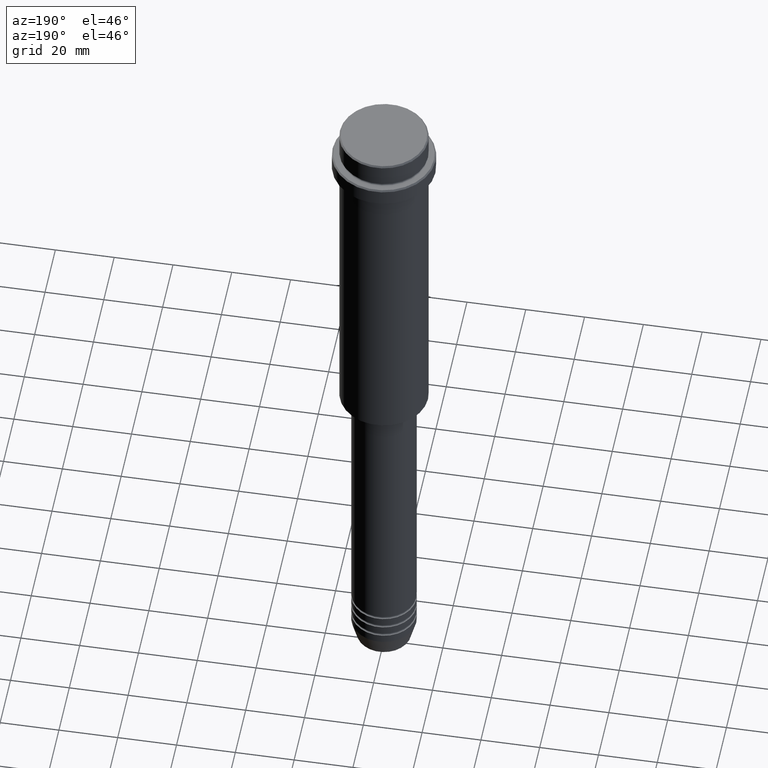
[diagram: clean part render]
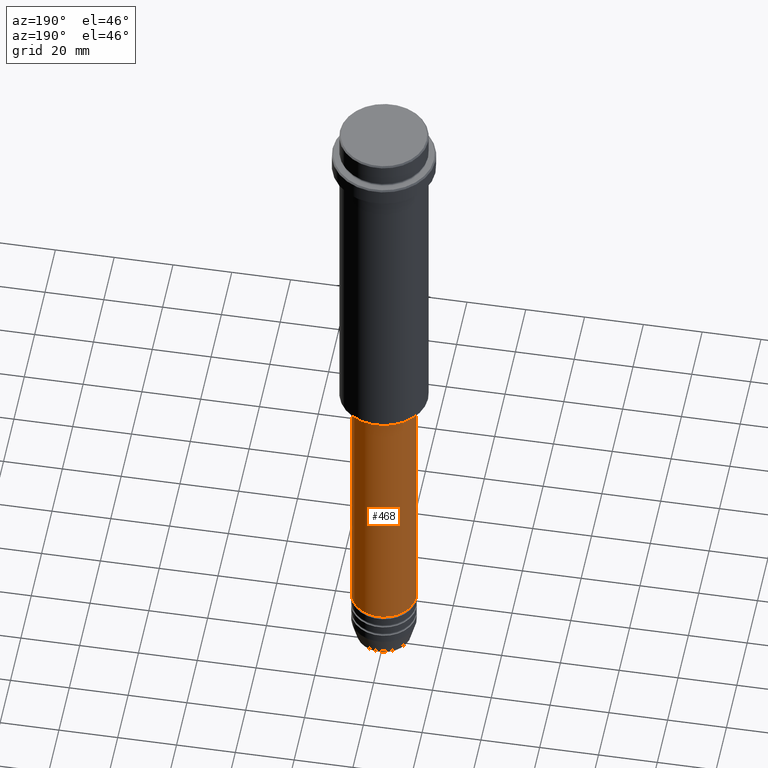
[diagram: same view with one face highlighted and labeled with its STEP entity id]
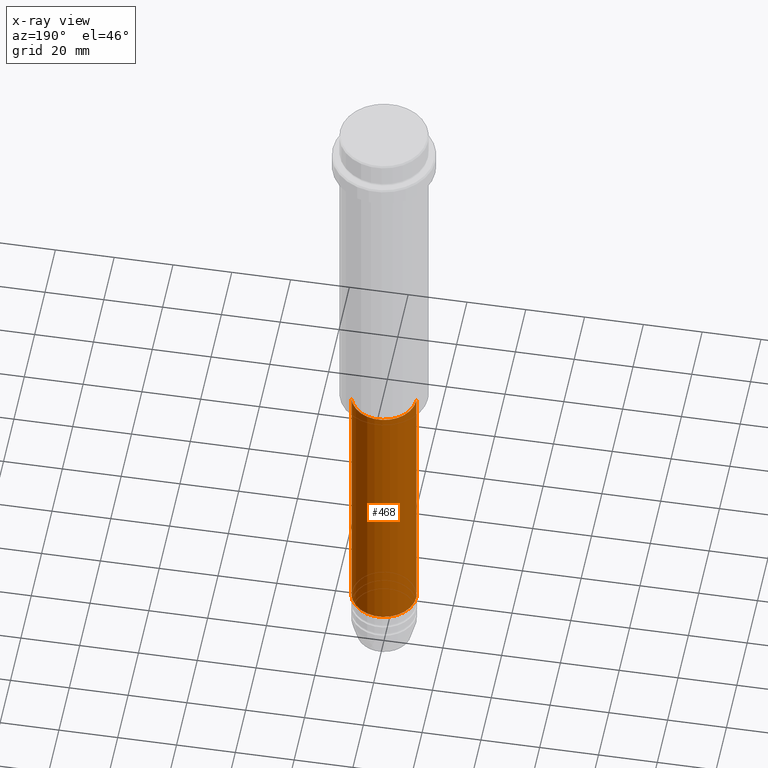
[diagram: x-ray of the same camera — body ghosted, the highlighted face saturated]
A machine part, auxiliary view. The second image highlights one B-rep face of the part: STEP entity #468.
The next image is the same camera in x-ray: the body ghosted, the highlighted face saturated — about 0% of this face is hidden behind the body in this view.
In plain terms, the highlighted cylindrical surface (edge-blend (fillet) strip) has radius 11 mm, axis along (-0, -0, 1).
Its self-contained STEP definition (entity closure, byte-faithful):
#76 = VECTOR ( 'NONE', #408, 1000.000000000000000 ) ;
#125 = CIRCLE ( 'NONE', #240, 11.00000000000000000 ) ;
#131 = LINE ( 'NONE', #716, #76 ) ;
#178 = CARTESIAN_POINT ( 'NONE',  ( 0.000000000000000000, 0.000000000000000000, -126.0000000000000000 ) ) ;
#240 = AXIS2_PLACEMENT_3D ( 'NONE', #1003, #1118, #782 ) ;
#246 = EDGE_LOOP ( 'NONE', ( #471, #433, #1373, #546 ) ) ;
#275 = EDGE_CURVE ( 'NONE', #841, #486, #901, .T. ) ;
#279 = LINE ( 'NONE', #503, #1149 ) ;
#331 = EDGE_CURVE ( 'NONE', #778, #841, #279, .T. ) ;
#408 = DIRECTION ( 'NONE',  ( -0.000000000000000000, -0.000000000000000000, 1.000000000000000000 ) ) ;
#416 = AXIS2_PLACEMENT_3D ( 'NONE', #1414, #981, #884 ) ;
#433 = ORIENTED_EDGE ( 'NONE', *, *, #1143, .T. ) ;
#468 = ADVANCED_FACE ( 'NONE', ( #545 ), #650, .T. ) ;
#471 = ORIENTED_EDGE ( 'NONE', *, *, #1045, .T. ) ;
#486 = VERTEX_POINT ( 'NONE', #550 ) ;
#503 = CARTESIAN_POINT ( 'NONE',  ( 11.00000000000000000, 0.000000000000000000, 0.000000000000000000 ) ) ;
#545 = FACE_OUTER_BOUND ( 'NONE', #246, .T. ) ;
#546 = ORIENTED_EDGE ( 'NONE', *, *, #331, .F. ) ;
#550 = CARTESIAN_POINT ( 'NONE',  ( -10.99999999999999822, 1.347111479062088207E-15, -126.0000000000000000 ) ) ;
#578 = VERTEX_POINT ( 'NONE', #674 ) ;
#601 = DIRECTION ( 'NONE',  ( -0.000000000000000000, -0.000000000000000000, 1.000000000000000000 ) ) ;
#650 = CYLINDRICAL_SURFACE ( 'NONE', #416, 11.00000000000000000 ) ;
#674 = CARTESIAN_POINT ( 'NONE',  ( -11.00000000000000000, 1.347111479062088405E-15, -220.9999999999998579 ) ) ;
#710 = CARTESIAN_POINT ( 'NONE',  ( 11.00000000000000000, 0.000000000000000000, -220.9999999999998579 ) ) ;
#716 = CARTESIAN_POINT ( 'NONE',  ( -11.00000000000000000, 1.347111479062088405E-15, 0.000000000000000000 ) ) ;
#778 = VERTEX_POINT ( 'NONE', #710 ) ;
#782 = DIRECTION ( 'NONE',  ( 1.000000000000000000, 0.000000000000000000, 0.000000000000000000 ) ) ;
#841 = VERTEX_POINT ( 'NONE', #1271 ) ;
#884 = DIRECTION ( 'NONE',  ( 1.000000000000000000, 0.000000000000000000, 0.000000000000000000 ) ) ;
#901 = CIRCLE ( 'NONE', #1348, 10.99999999999999822 ) ;
#981 = DIRECTION ( 'NONE',  ( -0.000000000000000000, -0.000000000000000000, 1.000000000000000000 ) ) ;
#1003 = CARTESIAN_POINT ( 'NONE',  ( 0.000000000000000000, 0.000000000000000000, -220.9999999999998579 ) ) ;
#1045 = EDGE_CURVE ( 'NONE', #778, #578, #125, .T. ) ;
#1118 = DIRECTION ( 'NONE',  ( -0.000000000000000000, -0.000000000000000000, 1.000000000000000000 ) ) ;
#1143 = EDGE_CURVE ( 'NONE', #578, #486, #131, .T. ) ;
#1149 = VECTOR ( 'NONE', #601, 1000.000000000000000 ) ;
#1165 = DIRECTION ( 'NONE',  ( -0.000000000000000000, -0.000000000000000000, 1.000000000000000000 ) ) ;
#1254 = DIRECTION ( 'NONE',  ( 1.000000000000000000, 0.000000000000000000, 0.000000000000000000 ) ) ;
#1271 = CARTESIAN_POINT ( 'NONE',  ( 10.99999999999999822, 0.000000000000000000, -126.0000000000000000 ) ) ;
#1348 = AXIS2_PLACEMENT_3D ( 'NONE', #178, #1165, #1254 ) ;
#1373 = ORIENTED_EDGE ( 'NONE', *, *, #275, .F. ) ;
#1414 = CARTESIAN_POINT ( 'NONE',  ( 0.000000000000000000, 0.000000000000000000, 0.000000000000000000 ) ) ;